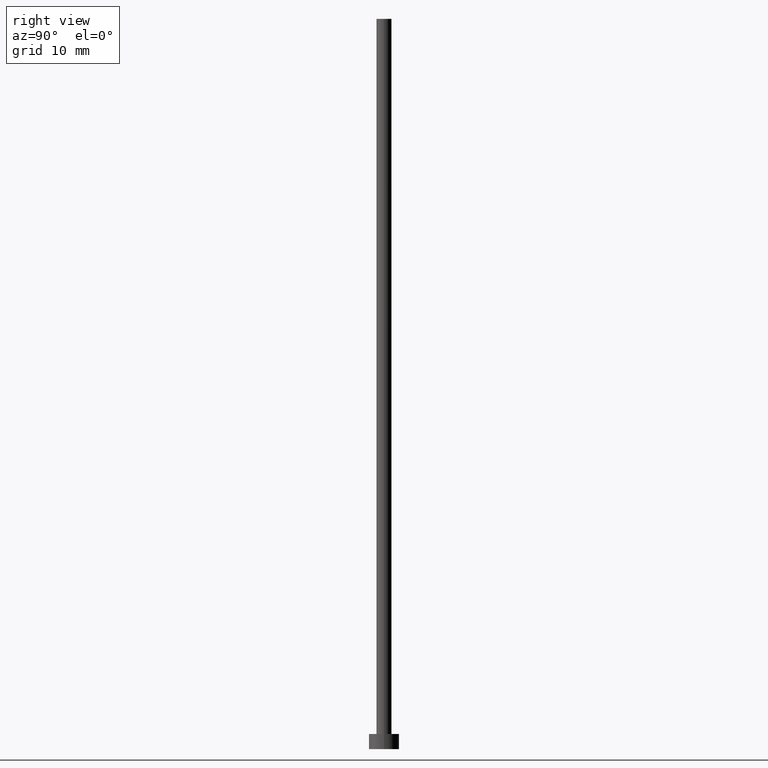
[diagram: clean part render]
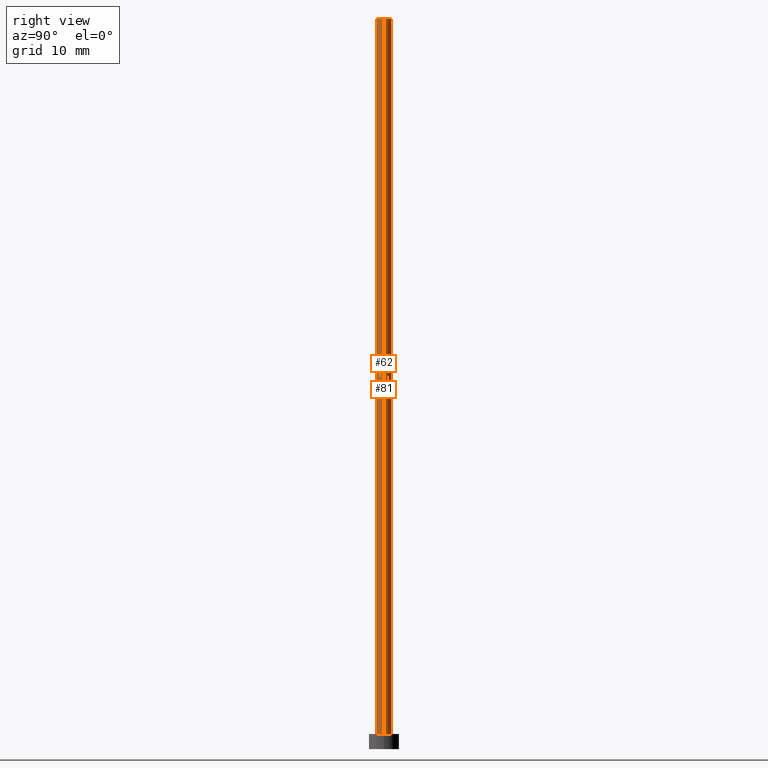
[diagram: same view with one multi-face feature highlighted, each face labeled with its STEP entity id]
A machine part, right view. The highlighted faces form ONE feature: a constant-radius fillet chain: 2 tangent blend faces with common blend radius 1 mm. The faces share edges in the B-rep.
Their STEP definitions:
[1] entity #62 (Cylinder):
#3 = DIRECTION ( 'NONE',  ( -1.000000000000000000, 0.000000000000000000, 0.000000000000000000 ) ) ;
#4 = DIRECTION ( 'NONE',  ( 1.000000000000000000, 0.000000000000000000, 0.000000000000000000 ) ) ;
#9 = AXIS2_PLACEMENT_3D ( 'NONE', #173, #188, #4 ) ;
#10 = FACE_OUTER_BOUND ( 'NONE', #37, .T. ) ;
#14 = CARTESIAN_POINT ( 'NONE',  ( -1.000000000000000000, 0.000000000000000000, 2.000000000000000000 ) ) ;
#23 = DIRECTION ( 'NONE',  ( -0.000000000000000000, -0.000000000000000000, -1.000000000000000000 ) ) ;
#25 = DIRECTION ( 'NONE',  ( -0.000000000000000000, -0.000000000000000000, -1.000000000000000000 ) ) ;
#37 = EDGE_LOOP ( 'NONE', ( #178, #134, #170, #39 ) ) ;
#39 = ORIENTED_EDGE ( 'NONE', *, *, #130, .T. ) ;
#40 = CARTESIAN_POINT ( 'NONE',  ( -1.000000000000000000, 0.000000000000000000, 97.00000000000000000 ) ) ;
#48 = DIRECTION ( 'NONE',  ( -0.000000000000000000, -0.000000000000000000, -1.000000000000000000 ) ) ;
#58 = CARTESIAN_POINT ( 'NONE',  ( 0.000000000000000000, 0.000000000000000000, 2.000000000000000000 ) ) ;
#62 = ADVANCED_FACE ( 'NONE', ( #10 ), #86, .T. ) ;
#80 = DIRECTION ( 'NONE',  ( 0.000000000000000000, 0.000000000000000000, 1.000000000000000000 ) ) ;
#83 = CIRCLE ( 'NONE', #9, 1.000000000000000000 ) ;
#86 = CYLINDRICAL_SURFACE ( 'NONE', #159, 1.000000000000000000 ) ;
#89 = EDGE_CURVE ( 'NONE', #107, #238, #158, .T. ) ;
#107 = VERTEX_POINT ( 'NONE', #40 ) ;
#130 = EDGE_CURVE ( 'NONE', #238, #153, #196, .T. ) ;
#134 = ORIENTED_EDGE ( 'NONE', *, *, #166, .F. ) ;
#137 = AXIS2_PLACEMENT_3D ( 'NONE', #58, #80, #140 ) ;
#140 = DIRECTION ( 'NONE',  ( 1.000000000000000000, 0.000000000000000000, 0.000000000000000000 ) ) ;
#153 = VERTEX_POINT ( 'NONE', #214 ) ;
#158 = LINE ( 'NONE', #180, #198 ) ;
#159 = AXIS2_PLACEMENT_3D ( 'NONE', #174, #25, #3 ) ;
#166 = EDGE_CURVE ( 'NONE', #107, #168, #83, .T. ) ;
#168 = VERTEX_POINT ( 'NONE', #169 ) ;
#169 = CARTESIAN_POINT ( 'NONE',  ( 1.000000000000000000, 1.224646799147353207E-16, 97.00000000000000000 ) ) ;
#170 = ORIENTED_EDGE ( 'NONE', *, *, #89, .T. ) ;
#173 = CARTESIAN_POINT ( 'NONE',  ( 0.000000000000000000, 0.000000000000000000, 97.00000000000000000 ) ) ;
#174 = CARTESIAN_POINT ( 'NONE',  ( 0.000000000000000000, 0.000000000000000000, 97.00000000000000000 ) ) ;
#178 = ORIENTED_EDGE ( 'NONE', *, *, #200, .F. ) ;
#180 = CARTESIAN_POINT ( 'NONE',  ( -1.000000000000000000, 0.000000000000000000, 97.00000000000000000 ) ) ;
#188 = DIRECTION ( 'NONE',  ( 0.000000000000000000, 0.000000000000000000, 1.000000000000000000 ) ) ;
#196 = CIRCLE ( 'NONE', #137, 1.000000000000000000 ) ;
#198 = VECTOR ( 'NONE', #23, 1000.000000000000000 ) ;
#200 = EDGE_CURVE ( 'NONE', #168, #153, #221, .T. ) ;
#202 = VECTOR ( 'NONE', #48, 1000.000000000000000 ) ;
#214 = CARTESIAN_POINT ( 'NONE',  ( 1.000000000000000000, 1.224646799147353207E-16, 2.000000000000000000 ) ) ;
#217 = CARTESIAN_POINT ( 'NONE',  ( 1.000000000000000000, 1.224646799147353207E-16, 97.00000000000000000 ) ) ;
#221 = LINE ( 'NONE', #217, #202 ) ;
#238 = VERTEX_POINT ( 'NONE', #14 ) ;
[2] entity #81 (Cylinder):
#8 = DIRECTION ( 'NONE',  ( 0.000000000000000000, 0.000000000000000000, 1.000000000000000000 ) ) ;
#12 = FACE_OUTER_BOUND ( 'NONE', #93, .T. ) ;
#14 = CARTESIAN_POINT ( 'NONE',  ( -1.000000000000000000, 0.000000000000000000, 2.000000000000000000 ) ) ;
#16 = CIRCLE ( 'NONE', #119, 1.000000000000000000 ) ;
#17 = ORIENTED_EDGE ( 'NONE', *, *, #89, .F. ) ;
#18 = EDGE_CURVE ( 'NONE', #153, #238, #16, .T. ) ;
#19 = DIRECTION ( 'NONE',  ( -1.000000000000000000, 0.000000000000000000, 0.000000000000000000 ) ) ;
#23 = DIRECTION ( 'NONE',  ( -0.000000000000000000, -0.000000000000000000, -1.000000000000000000 ) ) ;
#34 = ORIENTED_EDGE ( 'NONE', *, *, #195, .F. ) ;
#40 = CARTESIAN_POINT ( 'NONE',  ( -1.000000000000000000, 0.000000000000000000, 97.00000000000000000 ) ) ;
#48 = DIRECTION ( 'NONE',  ( -0.000000000000000000, -0.000000000000000000, -1.000000000000000000 ) ) ;
#49 = ORIENTED_EDGE ( 'NONE', *, *, #18, .T. ) ;
#72 = CIRCLE ( 'NONE', #232, 1.000000000000000000 ) ;
#81 = ADVANCED_FACE ( 'NONE', ( #12 ), #154, .T. ) ;
#84 = DIRECTION ( 'NONE',  ( 0.000000000000000000, 0.000000000000000000, 1.000000000000000000 ) ) ;
#89 = EDGE_CURVE ( 'NONE', #107, #238, #158, .T. ) ;
#93 = EDGE_LOOP ( 'NONE', ( #34, #204, #49, #17 ) ) ;
#107 = VERTEX_POINT ( 'NONE', #40 ) ;
#114 = DIRECTION ( 'NONE',  ( -0.000000000000000000, -0.000000000000000000, -1.000000000000000000 ) ) ;
#119 = AXIS2_PLACEMENT_3D ( 'NONE', #220, #84, #147 ) ;
#147 = DIRECTION ( 'NONE',  ( 1.000000000000000000, 0.000000000000000000, 0.000000000000000000 ) ) ;
#153 = VERTEX_POINT ( 'NONE', #214 ) ;
#154 = CYLINDRICAL_SURFACE ( 'NONE', #246, 1.000000000000000000 ) ;
#158 = LINE ( 'NONE', #180, #198 ) ;
#168 = VERTEX_POINT ( 'NONE', #169 ) ;
#169 = CARTESIAN_POINT ( 'NONE',  ( 1.000000000000000000, 1.224646799147353207E-16, 97.00000000000000000 ) ) ;
#171 = DIRECTION ( 'NONE',  ( 1.000000000000000000, 0.000000000000000000, 0.000000000000000000 ) ) ;
#180 = CARTESIAN_POINT ( 'NONE',  ( -1.000000000000000000, 0.000000000000000000, 97.00000000000000000 ) ) ;
#190 = CARTESIAN_POINT ( 'NONE',  ( 0.000000000000000000, 0.000000000000000000, 97.00000000000000000 ) ) ;
#195 = EDGE_CURVE ( 'NONE', #168, #107, #72, .T. ) ;
#198 = VECTOR ( 'NONE', #23, 1000.000000000000000 ) ;
#200 = EDGE_CURVE ( 'NONE', #168, #153, #221, .T. ) ;
#202 = VECTOR ( 'NONE', #48, 1000.000000000000000 ) ;
#204 = ORIENTED_EDGE ( 'NONE', *, *, #200, .T. ) ;
#206 = CARTESIAN_POINT ( 'NONE',  ( 0.000000000000000000, 0.000000000000000000, 97.00000000000000000 ) ) ;
#214 = CARTESIAN_POINT ( 'NONE',  ( 1.000000000000000000, 1.224646799147353207E-16, 2.000000000000000000 ) ) ;
#217 = CARTESIAN_POINT ( 'NONE',  ( 1.000000000000000000, 1.224646799147353207E-16, 97.00000000000000000 ) ) ;
#220 = CARTESIAN_POINT ( 'NONE',  ( 0.000000000000000000, 0.000000000000000000, 2.000000000000000000 ) ) ;
#221 = LINE ( 'NONE', #217, #202 ) ;
#232 = AXIS2_PLACEMENT_3D ( 'NONE', #190, #8, #171 ) ;
#238 = VERTEX_POINT ( 'NONE', #14 ) ;
#246 = AXIS2_PLACEMENT_3D ( 'NONE', #206, #114, #19 ) ;